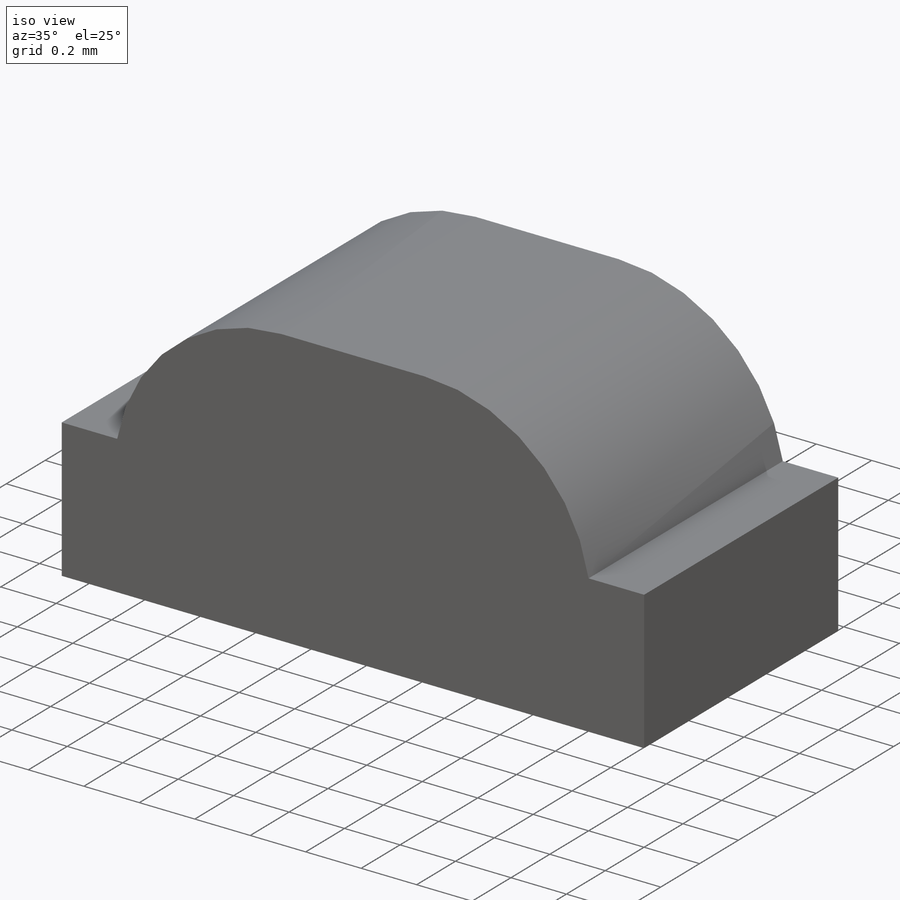
[diagram: iso view]
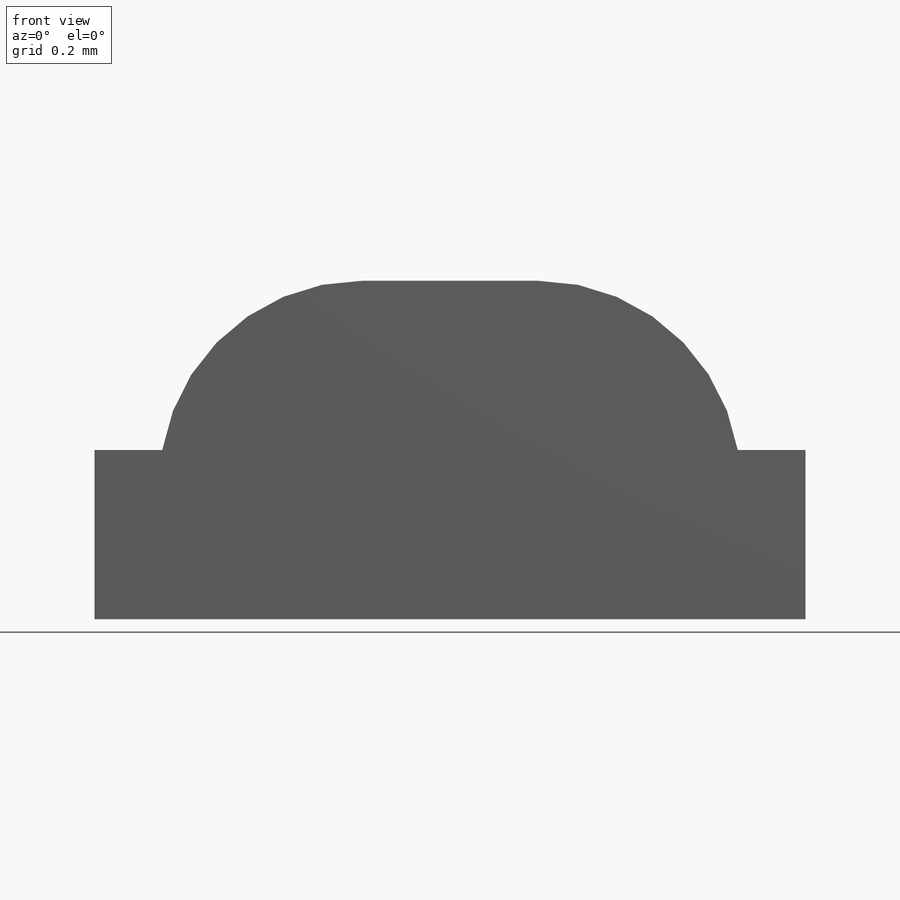
[diagram: front view]
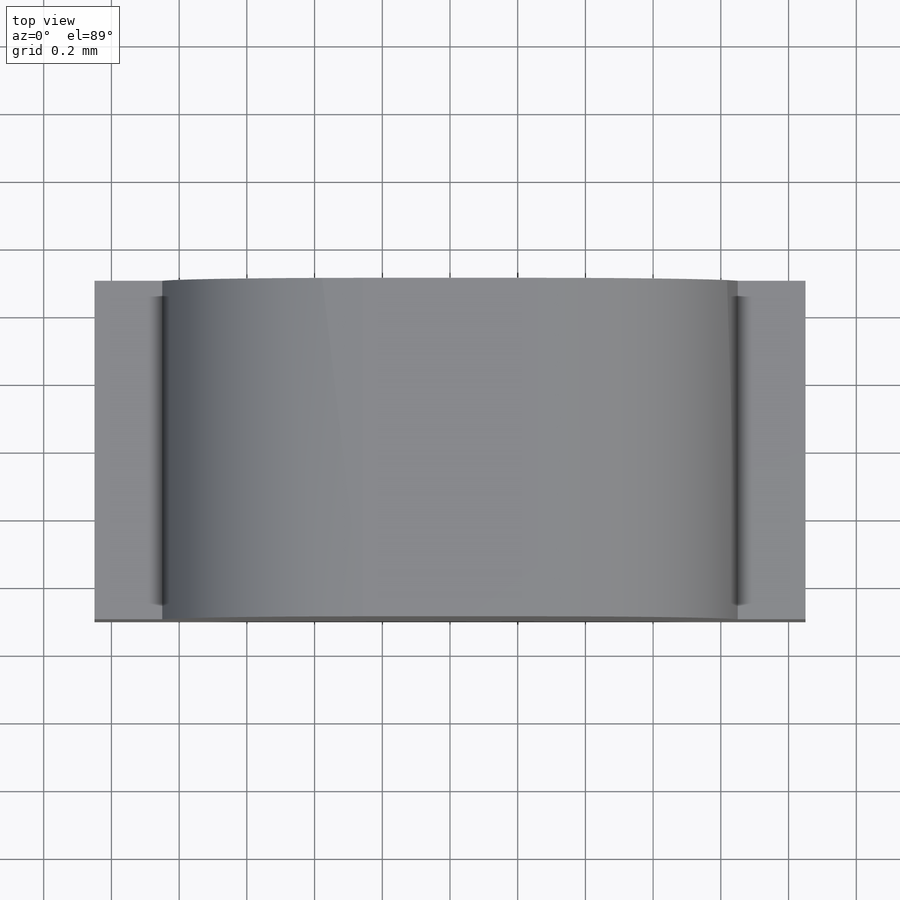
[diagram: top view]
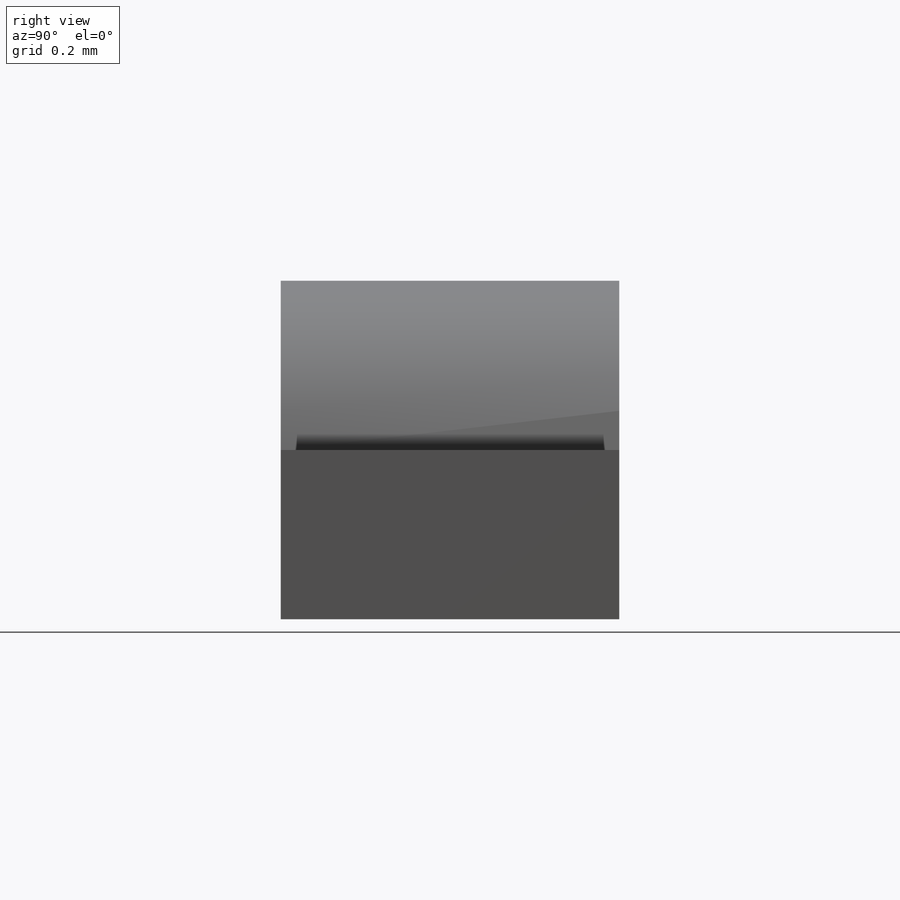
[diagram: right view]
SOLIDWORKS PART (.sldprt)
format: sldprt  version: not decoded by parser v0  size: 662,528 bytes
history: native  units: mm
features: sketch x5, extrude x3, material x1, cut_extrude x1 (+12 scaffold rows collapsed)
feature tree (22):
  scaffold x12  (default folders/planes/origin — collapsed)
  material  "Material <not specified>"
  sketch  "Sketch1"  dims[c1.D4=0.6mm c1.D1=0.5mm c1.D2=2.1mm c1.D3=0.85mm c2.D4=0.35mm c2.D5=1.0mm c2.D6=0.03mm c2.D7=0.03mm c2.D8=0.03mm c2.D9=0.2mm c2.D10=0.3mm c2.D3=1.7mm]
  extrude  "Extrude1"  Depth=1mm
  extrude  "Extrude3"  [1 undecoded]
  sketch  "Sketch1<6>"  dims[D1=1.0mm]
  sketch  "Sketch5"  dims[D1=0.1mm D2=0.1mm]
  extrude  "Extrude6"  [1 undecoded]
  sketch  "Sketch1<7>"  dims[D1=1.0mm]
  sketch  "Sketch6"
  cut_extrude  "Cut-Extrude1"  Depth=0.01mm
decode coverage: 6 of 9 modeling features carry decoded parameters
note: 2 parameter values undecoded
note: suppression state not decoded; provenance and decode notes live in map.json
